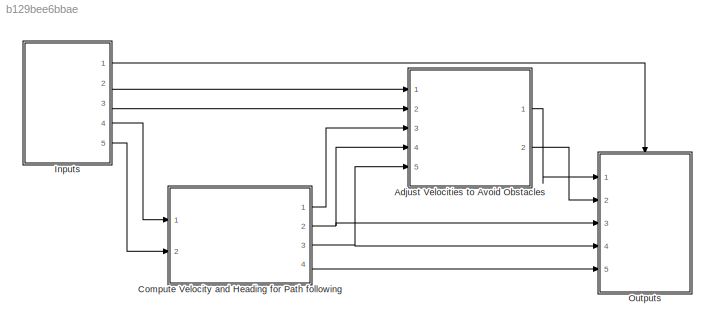
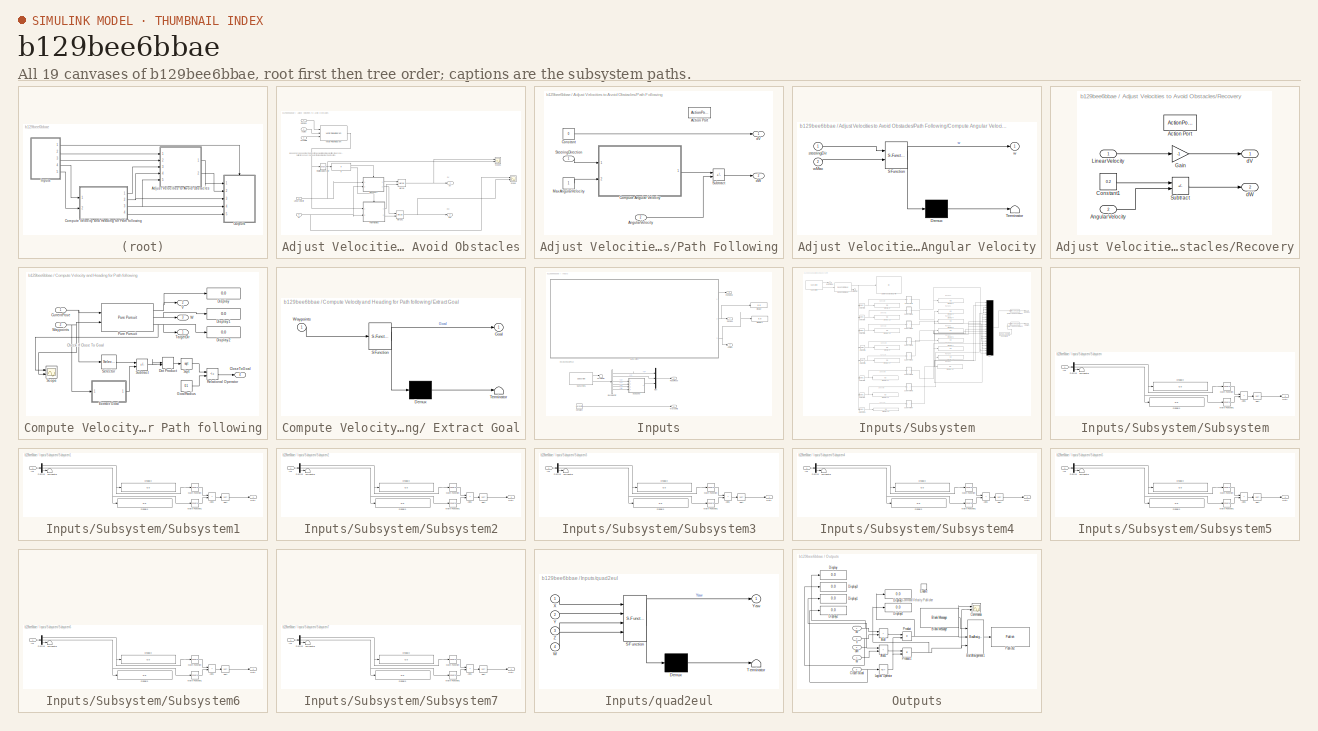
[diagram: thumbnail index - all 19 canvases of the model, root first then tree order]
MODEL slx_b129bee6bbae
KIND model
CONFIG AbsTol = auto
CONFIG EnableMultiTasking = off
CONFIG FixedStep = auto
CONFIG MaxStep = auto
CONFIG MinStep = auto
CONFIG RelTol = 1e-3
CONFIG SampleTimeConstraint = Unconstrained
CONFIG SolverName = FixedStepAuto
CONFIG StartTime = 0.0
CONFIG StopTime = inf
BLOCK [SubSystem] Adjust Velocities to Avoid Obstacles
  Ports = [5, 2]
  RequestExecContextInheritance = off
BLOCK [Inport] Adjust Velocities to Avoid Obstacles/Angles
  Port = 2
BLOCK [If] Adjust Velocities to Avoid Obstacles/If
  IfExpression = u1 == 1
  Ports = [1, 2]
BLOCK [Inport] Adjust Velocities to Avoid Obstacles/LinearVelocity
  Port = 4
BLOCK [Merge] Adjust Velocities to Avoid Obstacles/Merge
  Ports = [2, 1]
BLOCK [Merge] Adjust Velocities to Avoid Obstacles/Merge1
  Ports = [2, 1]
BLOCK [SubSystem] Adjust Velocities to Avoid Obstacles/Path Following
  Ports = [2, 2, 0, 0, 0, 0, 0, 1]
  RequestExecContextInheritance = off
  TreatAsAtomicUnit = on
BLOCK [ActionPort] Adjust Velocities to Avoid Obstacles/Path Following/Action Port
  ActionPortLabel = else
BLOCK [Inport] Adjust Velocities to Avoid Obstacles/Path Following/AngularVelocity
  Port = 2
BLOCK [SubSystem] Adjust Velocities to Avoid Obstacles/Path Following/Compute Angular Velocity
  ErrorFcn = Stateflow.Translate.translate
  PermitHierarchicalResolution = ExplicitOnly
  Ports = [2, 1]
  RequestExecContextInheritance = off
  SFBlockType = MATLAB Function
  TreatAsAtomicUnit = on
BLOCK [Demux] Adjust Velocities to Avoid Obstacles/Path Following/Compute Angular Velocity/ Demux 
  Outputs = 1
  Ports = [1, 1]
BLOCK [S-Function] Adjust Velocities to Avoid Obstacles/Path Following/Compute Angular Velocity/ SFunction 
  EnableBusSupport = on
  FunctionName = sf_sfun
  PortCounts = [2 2]
  Ports = [2, 2]
  SFcnIsStateOwnerBlock = off
  SFunctionDeploymentMode = off
  Tag = Stateflow S-Function 8
BLOCK [Terminator] Adjust Velocities to Avoid Obstacles/Path Following/Compute Angular Velocity/ Terminator 
BLOCK [Inport] Adjust Velocities to Avoid Obstacles/Path Following/Compute Angular Velocity/steeringDir
BLOCK [Outport] Adjust Velocities to Avoid Obstacles/Path Following/Compute Angular Velocity/w
  VectorParamsAs1DForOutWhenUnconnected = off
BLOCK [Inport] Adjust Velocities to Avoid Obstacles/Path Following/Compute Angular Velocity/wMax
  Port = 2
BLOCK [Constant] Adjust Velocities to Avoid Obstacles/Path Following/Constant
  Value = 0
BLOCK [Constant] Adjust Velocities to Avoid Obstacles/Path Following/MaxAngularVelocity
BLOCK [Inport] Adjust Velocities to Avoid Obstacles/Path Following/SteeringDirection
BLOCK [Sum] Adjust Velocities to Avoid Obstacles/Path Following/Subtract
  IconShape = rectangular
  Inputs = +-
  Ports = [2, 1]
BLOCK [Outport] Adjust Velocities to Avoid Obstacles/Path Following/dV
  VectorParamsAs1DForOutWhenUnconnected = off
BLOCK [Outport] Adjust Velocities to Avoid Obstacles/Path Following/dW
  Port = 2
  VectorParamsAs1DForOutWhenUnconnected = off
BLOCK [Inport] Adjust Velocities to Avoid Obstacles/Ranges
BLOCK [SubSystem] Adjust Velocities to Avoid Obstacles/Recovery
  Ports = [2, 2, 0, 0, 0, 0, 0, 1]
  RequestExecContextInheritance = off
  TreatAsAtomicUnit = on
BLOCK [ActionPort] Adjust Velocities to Avoid Obstacles/Recovery/Action Port
  ActionPortLabel = if(u1 == 1)
BLOCK [Inport] Adjust Velocities to Avoid Obstacles/Recovery/AngularVelocity
  Port = 2
BLOCK [Constant] Adjust Velocities to Avoid Obstacles/Recovery/Constant1
  Value = 0.2
BLOCK [Gain] Adjust Velocities to Avoid Obstacles/Recovery/Gain
  Gain = -1
BLOCK [Inport] Adjust Velocities to Avoid Obstacles/Recovery/LinearVelocity
BLOCK [Sum] Adjust Velocities to Avoid Obstacles/Recovery/Subtract
  IconShape = rectangular
  Inputs = +-
  Ports = [2, 1]
BLOCK [Outport] Adjust Velocities to Avoid Obstacles/Recovery/dV
  VectorParamsAs1DForOutWhenUnconnected = off
BLOCK [Outport] Adjust Velocities to Avoid Obstacles/Recovery/dW
  Port = 2
  VectorParamsAs1DForOutWhenUnconnected = off
BLOCK [RelationalOperator] Adjust Velocities to Avoid Obstacles/Relational Operator
  InputSameDT = off
  Operator = isNaN
  OutDataTypeStr = boolean
  Ports = [1, 1]
  RndMeth = Simplest
BLOCK [Scope] Adjust Velocities to Avoid Obstacles/Scope
  Floating = off
  NumInputPorts = 2
  Ports = [2]
  ScopeSpecificationString = Simulink.scopes.TimeScopeBlockCfg('CurrentConfiguration', extmgr.ConfigurationSet(extmgr.Configuration('Core','General UI',true),extmgr.Configuration('Core','Source UI',true),extmgr.Configuration('Sources','WiredSimulink',true,'DataLoggingVariableName','ScopeData1'),extmgr.Configuration('Visuals','Time Domain',true,'SerializedDisplays',{struct('MinYLimReal','-1.15','MaxYLimReal','1.35','YLabelReal...<+1434ch>
BLOCK [Scope] Adjust Velocities to Avoid Obstacles/Scope1
  Floating = off
  NumInputPorts = 2
  Ports = [2]
  ScopeSpecificationString = Simulink.scopes.TimeScopeBlockCfg('CurrentConfiguration', extmgr.ConfigurationSet(extmgr.Configuration('Core','General UI',true),extmgr.Configuration('Core','Source UI',true),extmgr.Configuration('Sources','WiredSimulink',true,'DataLoggingVariableName','ScopeData2'),extmgr.Configuration('Visuals','Time Domain',true,'SerializedDisplays',{struct('MinYLimReal','-0.0375','MaxYLimReal','0.3375','YLabel...<+1455ch>
BLOCK [Inport] Adjust Velocities to Avoid Obstacles/TargetDir
  Port = 3
BLOCK [Reference] Adjust Velocities to Avoid Obstacles/Vector Field Histogram  REF=robotalgslib/Vector Field Histogram
  Ports = [3, 1]
  SourceBlock = robotalgslib/Vector Field Histogram
  SourceProductBaseCode = NV,RO
  SourceType = nav.slalgs.internal.VectorFieldHistogram
BLOCK [Inport] Adjust Velocities to Avoid Obstacles/W
  Port = 5
BLOCK [Outport] Adjust Velocities to Avoid Obstacles/dV
BLOCK [Outport] Adjust Velocities to Avoid Obstacles/dW
  Port = 2
BLOCK [SubSystem] Compute Velocity and Heading for Path following
  Ports = [2, 4]
  RequestExecContextInheritance = off
BLOCK [SubSystem] Compute Velocity and Heading for Path following/ Extract Goal
  ErrorFcn = Stateflow.Translate.translate
  PermitHierarchicalResolution = ExplicitOnly
  Ports = [1, 1]
  RequestExecContextInheritance = off
  SFBlockType = MATLAB Function
  TreatAsAtomicUnit = on
BLOCK [Demux] Compute Velocity and Heading for Path following/ Extract Goal/ Demux 
  Outputs = 1
  Ports = [1, 1]
BLOCK [S-Function] Compute Velocity and Heading for Path following/ Extract Goal/ SFunction 
  EnableBusSupport = on
  FunctionName = sf_sfun
  PortCounts = [1 2]
  Ports = [1, 2]
  SFcnIsStateOwnerBlock = off
  SFunctionDeploymentMode = off
  Tag = Stateflow S-Function 7
BLOCK [Terminator] Compute Velocity and Heading for Path following/ Extract Goal/ Terminator 
BLOCK [Outport] Compute Velocity and Heading for Path following/ Extract Goal/Goal
  VectorParamsAs1DForOutWhenUnconnected = off
BLOCK [Inport] Compute Velocity and Heading for Path following/ Extract Goal/Waypoints
BLOCK [Outport] Compute Velocity and Heading for Path following/CloseToGoal
  Port = 4
  VectorParamsAs1DForOutWhenUnconnected = off
BLOCK [Inport] Compute Velocity and Heading for Path following/CurrentPose
BLOCK [Display] Compute Velocity and Heading for Path following/Display
  Decimation = 1
  Ports = [1]
BLOCK [Display] Compute Velocity and Heading for Path following/Display1
  Decimation = 1
  Ports = [1]
BLOCK [Display] Compute Velocity and Heading for Path following/Display2
  Decimation = 1
  Ports = [1]
BLOCK [DotProduct] Compute Velocity and Heading for Path following/Dot Product
  OutDataTypeStr = Inherit: Inherit via internal rule
BLOCK [Constant] Compute Velocity and Heading for Path following/GoalRadius
  Value = 0.1
BLOCK [Reference] Compute Velocity and Heading for Path following/Pure Pursuit  REF=robotalgslib/Pure Pursuit
  Ports = [2, 3]
  SourceBlock = robotalgslib/Pure Pursuit
  SourceProductBaseCode = NV,RO
  SourceType = nav.slalgs.internal.PurePursuit
BLOCK [RelationalOperator] Compute Velocity and Heading for Path following/Relational Operator
  InputSameDT = off
  Operator = <=
  OutDataTypeStr = boolean
  Ports = [2, 1]
  RndMeth = Simplest
BLOCK [Scope] Compute Velocity and Heading for Path following/Scope
  Floating = off
  NumInputPorts = 2
  Ports = [2]
  ScopeSpecificationString = Simulink.scopes.TimeScopeBlockCfg('CurrentConfiguration', extmgr.ConfigurationSet(extmgr.Configuration('Core','General UI',true),extmgr.Configuration('Core','Source UI',true),extmgr.Configuration('Sources','WiredSimulink',true,'DataLoggingVariableName','ScopeData3'),extmgr.Configuration('Visuals','Time Domain',true,'SerializedDisplays',{struct('MinYLimReal','-1.37819','MaxYLimReal','6.44778','YLab...<+4825ch>
BLOCK [Selector] Compute Velocity and Heading for Path following/Selector
  IndexOptions = Index vector (dialog)
  Indices = [1 2]
  InputPortWidth = 3
  OutputSizes = 1
  Ports = [1, 1]
BLOCK [Sqrt] Compute Velocity and Heading for Path following/Sqrt
BLOCK [Sum] Compute Velocity and Heading for Path following/Subtract
  IconShape = rectangular
  Inputs = +-
  Ports = [2, 1]
BLOCK [Outport] Compute Velocity and Heading for Path following/TargetDir
  VectorParamsAs1DForOutWhenUnconnected = off
BLOCK [Outport] Compute Velocity and Heading for Path following/V
  Port = 2
  VectorParamsAs1DForOutWhenUnconnected = off
BLOCK [Outport] Compute Velocity and Heading for Path following/W
  Port = 3
  VectorParamsAs1DForOutWhenUnconnected = off
BLOCK [Inport] Compute Velocity and Heading for Path following/Waypoints
  Port = 2
BLOCK [SubSystem] Inputs
  Ports = [0, 5]
  RequestExecContextInheritance = off
BLOCK [Outport] Inputs/Angles
  Port = 3
BLOCK [BusSelector] Inputs/Bus Selector
  OutputSignals = Pose.Pose.Position.X,Pose.Pose.Position.Y,Pose.Pose.Orientation.X,Pose.Pose.Orientation.Y,Pose.Pose.Orientation.Z,Pose.Pose.Orientation.W
  Ports = [1, 6]
BLOCK [Constant] Inputs/Constant
  Value = waypoints
BLOCK [Display] Inputs/Display
  Decimation = 1
  Ports = [1]
BLOCK [Display] Inputs/Display1
  Decimation = 1
  Ports = [1]
BLOCK [Outport] Inputs/InNewMsg
BLOCK [Mux] Inputs/Mux
  DisplayOption = bar
  Inputs = 3
  Ports = [3, 1]
BLOCK [Outport] Inputs/Ranges
  Port = 2
BLOCK [Outport] Inputs/RobotPose
  Port = 4
  VectorParamsAs1DForOutWhenUnconnected = off
BLOCK [Reference] Inputs/Subscribe1  REF=robotlib/Subscribe
  Ports = [0, 2]
  SourceBlock = robotlib/Subscribe
  SourceProductBaseCode = RR
  SourceType = ROS Subscribe
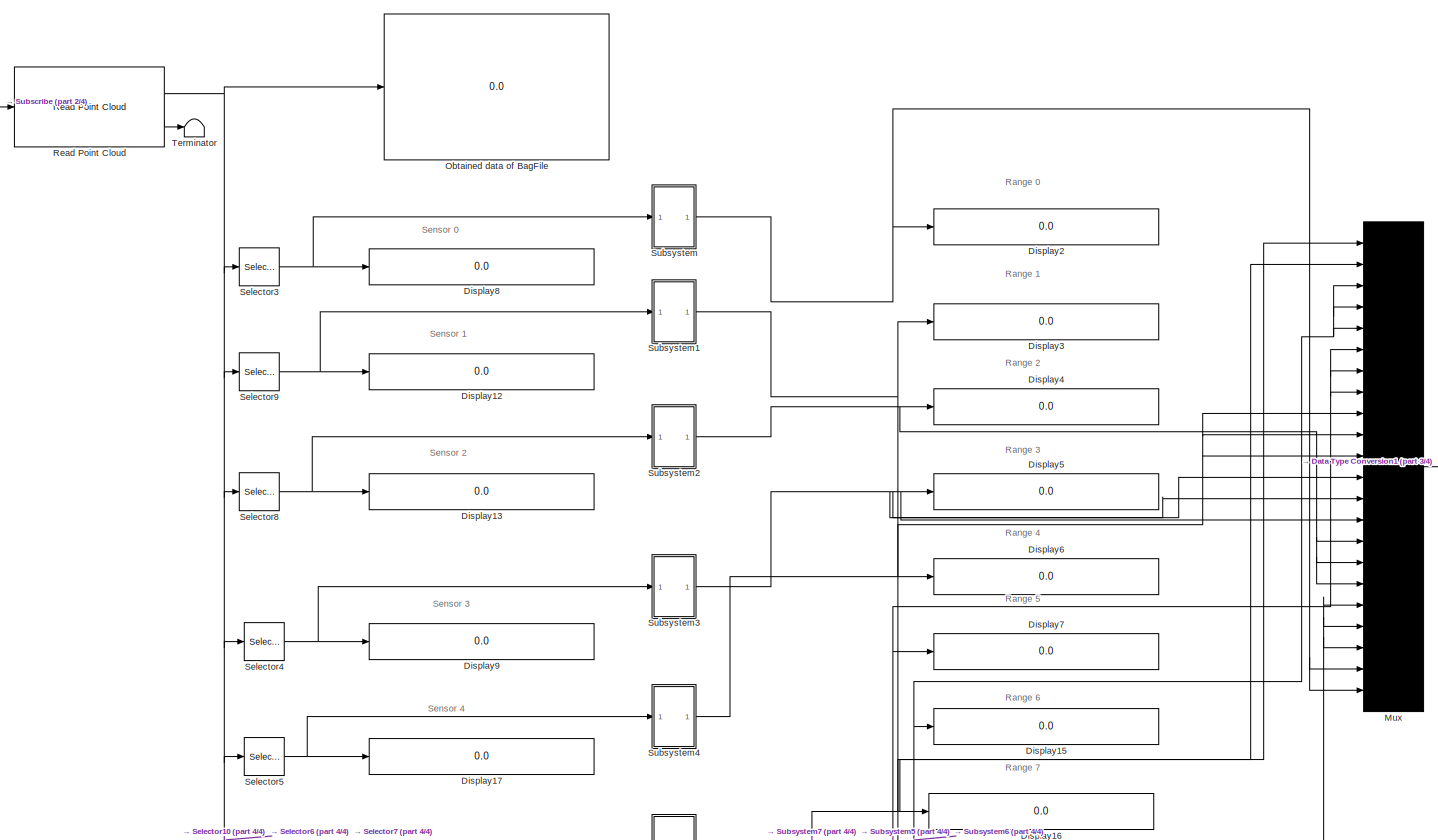
[diagram: Inputs/Subsystem - part 1/4, central region]
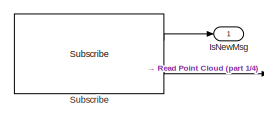
[diagram: Inputs/Subsystem - part 2/4, top left region]
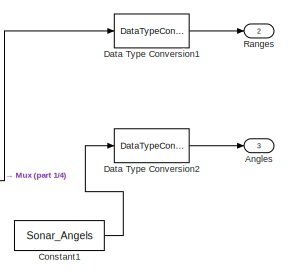
[diagram: Inputs/Subsystem - part 3/4, middle right region]
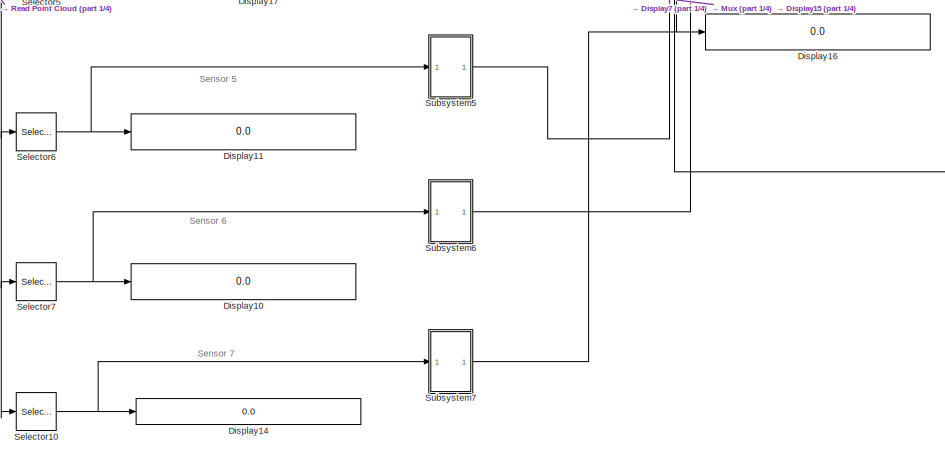
[diagram: Inputs/Subsystem - part 4/4, bottom center region]
BLOCK [SubSystem] Inputs/Subsystem
  Ports = [0, 3]
  RequestExecContextInheritance = off
BLOCK [Outport] Inputs/Subsystem/Angles
  Port = 3
BLOCK [Constant] Inputs/Subsystem/Constant1
  Value = Sonar_Angels
BLOCK [DataTypeConversion] Inputs/Subsystem/Data Type Conversion1
  OutDataTypeStr = double
  RndMeth = Floor
  SaturateOnIntegerOverflow = off
BLOCK [DataTypeConversion] Inputs/Subsystem/Data Type Conversion2
  OutDataTypeStr = double
  RndMeth = Floor
  SaturateOnIntegerOverflow = off
BLOCK [Display] Inputs/Subsystem/Display10
  Decimation = 1
  Ports = [1]
BLOCK [Display] Inputs/Subsystem/Display11
  Decimation = 1
  Ports = [1]
BLOCK [Display] Inputs/Subsystem/Display12
  Decimation = 1
  Ports = [1]
BLOCK [Display] Inputs/Subsystem/Display13
  Decimation = 1
  Ports = [1]
BLOCK [Display] Inputs/Subsystem/Display14
  Decimation = 1
  Ports = [1]
BLOCK [Display] Inputs/Subsystem/Display15
  Decimation = 1
  Ports = [1]
BLOCK [Display] Inputs/Subsystem/Display16
  Decimation = 1
  Ports = [1]
BLOCK [Display] Inputs/Subsystem/Display17
  Decimation = 1
  Ports = [1]
BLOCK [Display] Inputs/Subsystem/Display2
  Decimation = 1
  Ports = [1]
BLOCK [Display] Inputs/Subsystem/Display3
  Decimation = 1
  Ports = [1]
BLOCK [Display] Inputs/Subsystem/Display4
  Decimation = 1
  Ports = [1]
BLOCK [Display] Inputs/Subsystem/Display5
  Decimation = 1
  Ports = [1]
BLOCK [Display] Inputs/Subsystem/Display6
  Decimation = 1
  Ports = [1]
BLOCK [Display] Inputs/Subsystem/Display7
  Decimation = 1
  Ports = [1]
BLOCK [Display] Inputs/Subsystem/Display8
  Decimation = 1
  Ports = [1]
BLOCK [Display] Inputs/Subsystem/Display9
  Decimation = 1
  Ports = [1]
BLOCK [Outport] Inputs/Subsystem/IsNewMsg
BLOCK [Mux] Inputs/Subsystem/Mux
  DisplayOption = bar
  Inputs = 22
  Ports = [22, 1]
BLOCK [Display] Inputs/Subsystem/Obtained data of BagFile
  Decimation = 1
  Ports = [1]
BLOCK [Outport] Inputs/Subsystem/Ranges
  Port = 2
BLOCK [Reference] Inputs/Subsystem/Read Point Cloud  REF=robotlib/Read Point Cloud
  Ports = [1, 2]
  SourceBlock = robotlib/Read Point Cloud
  SourceProductBaseCode = RR
  SourceType = ros.slros.internal.block.ReadPointCloud
BLOCK [Selector] Inputs/Subsystem/Selector10
  IndexOptions = Starting index (dialog),Starting index (dialog)
  Indices = 8,1
  InputPortWidth = 6
  NumberOfDimensions = 2
  OutputSizes = 1,3
  Ports = [1, 1]
BLOCK [Selector] Inputs/Subsystem/Selector3
  IndexOptions = Starting index (dialog),Starting index (dialog)
  Indices = 1,1
  InputPortWidth = 6
  NumberOfDimensions = 2
  OutputSizes = 1,3
  Ports = [1, 1]
BLOCK [Selector] Inputs/Subsystem/Selector4
  IndexOptions = Starting index (dialog),Starting index (dialog)
  Indices = 4,1
  InputPortWidth = 6
  NumberOfDimensions = 2
  OutputSizes = 1,3
  Ports = [1, 1]
BLOCK [Selector] Inputs/Subsystem/Selector5
  IndexOptions = Starting index (dialog),Starting index (dialog)
  Indices = 5,1
  InputPortWidth = 6
  NumberOfDimensions = 2
  OutputSizes = 1,3
  Ports = [1, 1]
BLOCK [Selector] Inputs/Subsystem/Selector6
  IndexOptions = Starting index (dialog),Starting index (dialog)
  Indices = 6,1
  InputPortWidth = 6
  NumberOfDimensions = 2
  OutputSizes = 1,3
  Ports = [1, 1]
BLOCK [Selector] Inputs/Subsystem/Selector7
  IndexOptions = Starting index (dialog),Starting index (dialog)
  Indices = 7,1
  InputPortWidth = 6
  NumberOfDimensions = 2
  OutputSizes = 1,3
  Ports = [1, 1]
BLOCK [Selector] Inputs/Subsystem/Selector8
  IndexOptions = Starting index (dialog),Starting index (dialog)
  Indices = 3,1
  InputPortWidth = 6
  NumberOfDimensions = 2
  OutputSizes = 1,3
  Ports = [1, 1]
BLOCK [Selector] Inputs/Subsystem/Selector9
  IndexOptions = Starting index (dialog),Starting index (dialog)
  Indices = 2,1
  InputPortWidth = 6
  NumberOfDimensions = 2
  OutputSizes = 1,3
  Ports = [1, 1]
BLOCK [Reference] Inputs/Subsystem/Subscribe  REF=robotlib/Subscribe
  Ports = [0, 2]
  SourceBlock = robotlib/Subscribe
  SourceProductBaseCode = RR
  SourceType = ROS Subscribe
BLOCK [SubSystem] Inputs/Subsystem/Subsystem
  Ports = [1, 1]
  RequestExecContextInheritance = off
BLOCK [Sum] Inputs/Subsystem/Subsystem/Add1
  IconShape = rectangular
  Ports = [2, 1]
BLOCK [Demux] Inputs/Subsystem/Subsystem/Demux
  Outputs = 3
  Ports = [1, 3]
BLOCK [Display] Inputs/Subsystem/Subsystem/Display2
  Decimation = 1
  Ports = [1]
BLOCK [Display] Inputs/Subsystem/Subsystem/Display3
  Decimation = 1
  Ports = [1]
BLOCK [Inport] Inputs/Subsystem/Subsystem/In1
BLOCK [Math] Inputs/Subsystem/Subsystem/Math Function
  Operator = square
  Ports = [1, 1]
BLOCK [Math] Inputs/Subsystem/Subsystem/Math Function1
  Operator = square
  Ports = [1, 1]
BLOCK [Outport] Inputs/Subsystem/Subsystem/Out1
BLOCK [Sqrt] Inputs/Subsystem/Subsystem/Sqrt
BLOCK [Terminator] Inputs/Subsystem/Subsystem/Terminator
BLOCK [SubSystem] Inputs/Subsystem/Subsystem1
  Ports = [1, 1]
  RequestExecContextInheritance = off
BLOCK [Sum] Inputs/Subsystem/Subsystem1/Add1
  IconShape = rectangular
  Ports = [2, 1]
BLOCK [Demux] Inputs/Subsystem/Subsystem1/Demux
  Outputs = 3
  Ports = [1, 3]
BLOCK [Display] Inputs/Subsystem/Subsystem1/Display2
  Decimation = 1
  Ports = [1]
BLOCK [Display] Inputs/Subsystem/Subsystem1/Display3
  Decimation = 1
  Ports = [1]
BLOCK [Inport] Inputs/Subsystem/Subsystem1/In1
BLOCK [Math] Inputs/Subsystem/Subsystem1/Math Function
  Operator = square
  Ports = [1, 1]
BLOCK [Math] Inputs/Subsystem/Subsystem1/Math Function1
  Operator = square
  Ports = [1, 1]
BLOCK [Outport] Inputs/Subsystem/Subsystem1/Out1
BLOCK [Sqrt] Inputs/Subsystem/Subsystem1/Sqrt
BLOCK [Terminator] Inputs/Subsystem/Subsystem1/Terminator
BLOCK [SubSystem] Inputs/Subsystem/Subsystem2
  Ports = [1, 1]
  RequestExecContextInheritance = off
BLOCK [Sum] Inputs/Subsystem/Subsystem2/Add1
  IconShape = rectangular
  Ports = [2, 1]
BLOCK [Demux] Inputs/Subsystem/Subsystem2/Demux
  Outputs = 3
  Ports = [1, 3]
BLOCK [Display] Inputs/Subsystem/Subsystem2/Display2
  Decimation = 1
  Ports = [1]
BLOCK [Display] Inputs/Subsystem/Subsystem2/Display3
  Decimation = 1
  Ports = [1]
BLOCK [Inport] Inputs/Subsystem/Subsystem2/In1
BLOCK [Math] Inputs/Subsystem/Subsystem2/Math Function
  Operator = square
  Ports = [1, 1]
BLOCK [Math] Inputs/Subsystem/Subsystem2/Math Function1
  Operator = square
  Ports = [1, 1]
BLOCK [Outport] Inputs/Subsystem/Subsystem2/Out1
BLOCK [Sqrt] Inputs/Subsystem/Subsystem2/Sqrt
BLOCK [Terminator] Inputs/Subsystem/Subsystem2/Terminator
BLOCK [SubSystem] Inputs/Subsystem/Subsystem3
  Ports = [1, 1]
  RequestExecContextInheritance = off
BLOCK [Sum] Inputs/Subsystem/Subsystem3/Add1
  IconShape = rectangular
  Ports = [2, 1]
BLOCK [Demux] Inputs/Subsystem/Subsystem3/Demux
  Outputs = 3
  Ports = [1, 3]
BLOCK [Display] Inputs/Subsystem/Subsystem3/Display2
  Decimation = 1
  Ports = [1]
BLOCK [Display] Inputs/Subsystem/Subsystem3/Display3
  Decimation = 1
  Ports = [1]
BLOCK [Inport] Inputs/Subsystem/Subsystem3/In1
BLOCK [Math] Inputs/Subsystem/Subsystem3/Math Function
  Operator = square
  Ports = [1, 1]
BLOCK [Math] Inputs/Subsystem/Subsystem3/Math Function1
  Operator = square
  Ports = [1, 1]
BLOCK [Outport] Inputs/Subsystem/Subsystem3/Out1
BLOCK [Sqrt] Inputs/Subsystem/Subsystem3/Sqrt
BLOCK [Terminator] Inputs/Subsystem/Subsystem3/Terminator
BLOCK [SubSystem] Inputs/Subsystem/Subsystem4
  Ports = [1, 1]
  RequestExecContextInheritance = off
BLOCK [Sum] Inputs/Subsystem/Subsystem4/Add1
  IconShape = rectangular
  Ports = [2, 1]
BLOCK [Demux] Inputs/Subsystem/Subsystem4/Demux
  Outputs = 3
  Ports = [1, 3]
BLOCK [Display] Inputs/Subsystem/Subsystem4/Display2
  Decimation = 1
  Ports = [1]
BLOCK [Display] Inputs/Subsystem/Subsystem4/Display3
  Decimation = 1
  Ports = [1]
BLOCK [Inport] Inputs/Subsystem/Subsystem4/In1
BLOCK [Math] Inputs/Subsystem/Subsystem4/Math Function
  Operator = square
  Ports = [1, 1]
BLOCK [Math] Inputs/Subsystem/Subsystem4/Math Function1
  Operator = square
  Ports = [1, 1]
BLOCK [Outport] Inputs/Subsystem/Subsystem4/Out1
BLOCK [Sqrt] Inputs/Subsystem/Subsystem4/Sqrt
BLOCK [Terminator] Inputs/Subsystem/Subsystem4/Terminator
BLOCK [SubSystem] Inputs/Subsystem/Subsystem5
  Ports = [1, 1]
  RequestExecContextInheritance = off
BLOCK [Sum] Inputs/Subsystem/Subsystem5/Add1
  IconShape = rectangular
  Ports = [2, 1]
BLOCK [Demux] Inputs/Subsystem/Subsystem5/Demux
  Outputs = 3
  Ports = [1, 3]
BLOCK [Display] Inputs/Subsystem/Subsystem5/Display2
  Decimation = 1
  Ports = [1]
BLOCK [Display] Inputs/Subsystem/Subsystem5/Display3
  Decimation = 1
  Ports = [1]
BLOCK [Inport] Inputs/Subsystem/Subsystem5/In1
BLOCK [Math] Inputs/Subsystem/Subsystem5/Math Function
  Operator = square
  Ports = [1, 1]
BLOCK [Math] Inputs/Subsystem/Subsystem5/Math Function1
  Operator = square
  Ports = [1, 1]
BLOCK [Outport] Inputs/Subsystem/Subsystem5/Out1
BLOCK [Sqrt] Inputs/Subsystem/Subsystem5/Sqrt
BLOCK [Terminator] Inputs/Subsystem/Subsystem5/Terminator
BLOCK [SubSystem] Inputs/Subsystem/Subsystem6
  Ports = [1, 1]
  RequestExecContextInheritance = off
BLOCK [Sum] Inputs/Subsystem/Subsystem6/Add1
  IconShape = rectangular
  Ports = [2, 1]
BLOCK [Demux] Inputs/Subsystem/Subsystem6/Demux
  Outputs = 3
  Ports = [1, 3]
BLOCK [Display] Inputs/Subsystem/Subsystem6/Display2
  Decimation = 1
  Ports = [1]
BLOCK [Display] Inputs/Subsystem/Subsystem6/Display3
  Decimation = 1
  Ports = [1]
BLOCK [Inport] Inputs/Subsystem/Subsystem6/In1
BLOCK [Math] Inputs/Subsystem/Subsystem6/Math Function
  Operator = square
  Ports = [1, 1]
BLOCK [Math] Inputs/Subsystem/Subsystem6/Math Function1
  Operator = square
  Ports = [1, 1]
BLOCK [Outport] Inputs/Subsystem/Subsystem6/Out1
BLOCK [Sqrt] Inputs/Subsystem/Subsystem6/Sqrt
BLOCK [Terminator] Inputs/Subsystem/Subsystem6/Terminator
BLOCK [SubSystem] Inputs/Subsystem/Subsystem7
  Ports = [1, 1]
  RequestExecContextInheritance = off
BLOCK [Sum] Inputs/Subsystem/Subsystem7/Add1
  IconShape = rectangular
  Ports = [2, 1]
BLOCK [Demux] Inputs/Subsystem/Subsystem7/Demux
  Outputs = 3
  Ports = [1, 3]
BLOCK [Display] Inputs/Subsystem/Subsystem7/Display2
  Decimation = 1
  Ports = [1]
BLOCK [Display] Inputs/Subsystem/Subsystem7/Display3
  Decimation = 1
  Ports = [1]
BLOCK [Inport] Inputs/Subsystem/Subsystem7/In1
BLOCK [Math] Inputs/Subsystem/Subsystem7/Math Function
  Operator = square
  Ports = [1, 1]
BLOCK [Math] Inputs/Subsystem/Subsystem7/Math Function1
  Operator = square
  Ports = [1, 1]
BLOCK [Outport] Inputs/Subsystem/Subsystem7/Out1
BLOCK [Sqrt] Inputs/Subsystem/Subsystem7/Sqrt
BLOCK [Terminator] Inputs/Subsystem/Subsystem7/Terminator
BLOCK [Terminator] Inputs/Subsystem/Terminator
BLOCK [Terminator] Inputs/Terminator
BLOCK [Outport] Inputs/Waypoints
  Port = 5
  VectorParamsAs1DForOutWhenUnconnected = off
BLOCK [SubSystem] Inputs/quad2eul
  ErrorFcn = Stateflow.Translate.translate
  PermitHierarchicalResolution = ExplicitOnly
  Ports = [4, 1]
  RequestExecContextInheritance = off
  SFBlockType = MATLAB Function
  TreatAsAtomicUnit = on
BLOCK [Demux] Inputs/quad2eul/ Demux 
  Outputs = 1
  Ports = [1, 1]
BLOCK [S-Function] Inputs/quad2eul/ SFunction 
  EnableBusSupport = on
  FunctionName = sf_sfun
  PortCounts = [4 2]
  Ports = [4, 2]
  SFcnIsStateOwnerBlock = off
  SFunctionDeploymentMode = off
  Tag = Stateflow S-Function 1
BLOCK [Terminator] Inputs/quad2eul/ Terminator 
BLOCK [Inport] Inputs/quad2eul/W
  Port = 4
BLOCK [Inport] Inputs/quad2eul/X
BLOCK [Inport] Inputs/quad2eul/Y
  Port = 2
BLOCK [Outport] Inputs/quad2eul/Yaw
  VectorParamsAs1DForOutWhenUnconnected = off
BLOCK [Inport] Inputs/quad2eul/Z
  Port = 3
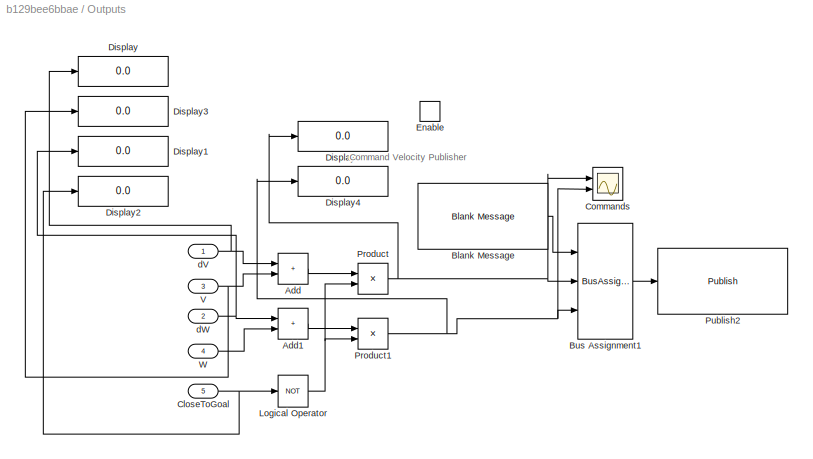
BLOCK [SubSystem] Outputs
  Ports = [5, 0, 1]
  RequestExecContextInheritance = off
BLOCK [Sum] Outputs/Add
  IconShape = rectangular
  Ports = [2, 1]
BLOCK [Sum] Outputs/Add1
  IconShape = rectangular
  Ports = [2, 1]
BLOCK [Reference] Outputs/Blank Message  REF=robotlib/Blank Message
  Ports = [0, 1]
  SourceBlock = robotlib/Blank Message
  SourceProductBaseCode = RR
  SourceType = ROS Blank Message
BLOCK [BusAssignment] Outputs/Bus Assignment1
  AssignedSignals = Linear.X,Angular.Z
  DialogController = Simulink.DDGSource_BusAssignment
  Ports = [3, 1]
BLOCK [Inport] Outputs/CloseToGoal
  Port = 5
BLOCK [Scope] Outputs/Commands
  Floating = off
  NumInputPorts = 2
  Ports = [2]
  ScopeSpecificationString = Simulink.scopes.TimeScopeBlockCfg('CurrentConfiguration', extmgr.ConfigurationSet(extmgr.Configuration('Core','General UI',true),extmgr.Configuration('Core','Source UI',true),extmgr.Configuration('Sources','WiredSimulink',true,'DataLoggingVariableName','ScopeData1'),extmgr.Configuration('Visuals','Time Domain',true,'SerializedDisplays',{struct('MinYLimReal','-1.00000','MaxYLimReal','1.00000','YLab...<+1998ch>
BLOCK [Display] Outputs/Display
  Decimation = 1
  Ports = [1]
BLOCK [Display] Outputs/Display1
  Decimation = 1
  Ports = [1]
BLOCK [Display] Outputs/Display2
  Decimation = 1
  Ports = [1]
BLOCK [Display] Outputs/Display3
  Decimation = 1
  Ports = [1]
BLOCK [Display] Outputs/Display4
  Decimation = 1
  Ports = [1]
BLOCK [Display] Outputs/Display5
  Decimation = 1
  Ports = [1]
BLOCK [EnablePort] Outputs/Enable
  Ports = []
BLOCK [Logic] Outputs/Logical Operator
  AllPortsSameDT = off
  Operator = NOT
  OutDataTypeStr = boolean
  Ports = [1, 1]
BLOCK [Product] Outputs/Product
  Ports = [2, 1]
BLOCK [Product] Outputs/Product1
  Ports = [2, 1]
BLOCK [Reference] Outputs/Publish2  REF=robotlib/Publish
  AttributesFormatString = %<messageType>
  Ports = [1]
  SourceBlock = robotlib/Publish
  SourceProductBaseCode = RR
  SourceType = ROS Publish
BLOCK [Inport] Outputs/V
  Port = 3
BLOCK [Inport] Outputs/W
  Port = 4
BLOCK [Inport] Outputs/dV
BLOCK [Inport] Outputs/dW
  Port = 2
ANNOTATION Adjust Velocities to Avoid Obstacles: Based on proposed steering direction, evaluate feasible velocities (linear and angular). Switch to recovery behavior if no feasible steering direction.
ANNOTATION Adjust Velocities to Avoid Obstacles: dV
ANNOTATION Adjust Velocities to Avoid Obstacles: dW
ANNOTATION Compute Velocity and Heading for Path following: Check If Close To Goal
ANNOTATION Inputs: Receive Robot Pose
ANNOTATION Inputs/Subsystem: Range 0
ANNOTATION Inputs/Subsystem: Range 1
ANNOTATION Inputs/Subsystem: Range 2
ANNOTATION Inputs/Subsystem: Range 3
ANNOTATION Inputs/Subsystem: Range 4
ANNOTATION Inputs/Subsystem: Range 5
ANNOTATION Inputs/Subsystem: Range 6
ANNOTATION Inputs/Subsystem: Range 7
ANNOTATION Inputs/Subsystem: Sensor 0
ANNOTATION Inputs/Subsystem: Sensor 1
ANNOTATION Inputs/Subsystem: Sensor 2
ANNOTATION Inputs/Subsystem: Sensor 3
ANNOTATION Inputs/Subsystem: Sensor 4
ANNOTATION Inputs/Subsystem: Sensor 5
ANNOTATION Inputs/Subsystem: Sensor 6
ANNOTATION Inputs/Subsystem: Sensor 7
ANNOTATION Outputs: Command Velocity Publisher
LINE Adjust Velocities to Avoid Obstacles/Angles:1 -> Adjust Velocities to Avoid Obstacles/Vector Field Histogram:2
LINE Adjust Velocities to Avoid Obstacles/If:1 -> Adjust Velocities to Avoid Obstacles/Recovery:ifaction
LINE Adjust Velocities to Avoid Obstacles/If:2 -> Adjust Velocities to Avoid Obstacles/Path Following:ifaction
NET Adjust Velocities to Avoid Obstacles/LinearVelocity:1 -> Adjust Velocities to Avoid Obstacles/Recovery:1, Adjust Velocities to Avoid Obstacles/Scope1:2
NET Adjust Velocities to Avoid Obstacles/Merge1:1 -> Adjust Velocities to Avoid Obstacles/Scope:2, Adjust Velocities to Avoid Obstacles/dW:1
NET Adjust Velocities to Avoid Obstacles/Merge:1 -> Adjust Velocities to Avoid Obstacles/Scope1:1, Adjust Velocities to Avoid Obstacles/dV:1
LINE Adjust Velocities to Avoid Obstacles/Path Following/AngularVelocity:1 -> Adjust Velocities to Avoid Obstacles/Path Following/Subtract:2
LINE Adjust Velocities to Avoid Obstacles/Path Following/Compute Angular Velocity:1 -> Adjust Velocities to Avoid Obstacles/Path Following/Subtract:1
LINE Adjust Velocities to Avoid Obstacles/Path Following/Constant:1 -> Adjust Velocities to Avoid Obstacles/Path Following/dV:1
LINE Adjust Velocities to Avoid Obstacles/Path Following/MaxAngularVelocity:1 -> Adjust Velocities to Avoid Obstacles/Path Following/Compute Angular Velocity:2
LINE Adjust Velocities to Avoid Obstacles/Path Following/SteeringDirection:1 -> Adjust Velocities to Avoid Obstacles/Path Following/Compute Angular Velocity:1
LINE Adjust Velocities to Avoid Obstacles/Path Following/Subtract:1 -> Adjust Velocities to Avoid Obstacles/Path Following/dW:1
LINE Adjust Velocities to Avoid Obstacles/Path Following:1 -> Adjust Velocities to Avoid Obstacles/Merge:2
LINE Adjust Velocities to Avoid Obstacles/Path Following:2 -> Adjust Velocities to Avoid Obstacles/Merge1:2
LINE Adjust Velocities to Avoid Obstacles/Ranges:1 -> Adjust Velocities to Avoid Obstacles/Vector Field Histogram:1
LINE Adjust Velocities to Avoid Obstacles/Recovery/AngularVelocity:1 -> Adjust Velocities to Avoid Obstacles/Recovery/Subtract:2
LINE Adjust Velocities to Avoid Obstacles/Recovery/Constant1:1 -> Adjust Velocities to Avoid Obstacles/Recovery/Subtract:1
LINE Adjust Velocities to Avoid Obstacles/Recovery/Gain:1 -> Adjust Velocities to Avoid Obstacles/Recovery/dV:1
LINE Adjust Velocities to Avoid Obstacles/Recovery/LinearVelocity:1 -> Adjust Velocities to Avoid Obstacles/Recovery/Gain:1
LINE Adjust Velocities to Avoid Obstacles/Recovery/Subtract:1 -> Adjust Velocities to Avoid Obstacles/Recovery/dW:1
LINE Adjust Velocities to Avoid Obstacles/Recovery:1 -> Adjust Velocities to Avoid Obstacles/Merge:1
LINE Adjust Velocities to Avoid Obstacles/Recovery:2 -> Adjust Velocities to Avoid Obstacles/Merge1:1
LINE Adjust Velocities to Avoid Obstacles/Relational Operator:1 -> Adjust Velocities to Avoid Obstacles/If:1
LINE Adjust Velocities to Avoid Obstacles/TargetDir:1 -> Adjust Velocities to Avoid Obstacles/Vector Field Histogram:3
NET Adjust Velocities to Avoid Obstacles/Vector Field Histogram:1 -> Adjust Velocities to Avoid Obstacles/Path Following:1, Adjust Velocities to Avoid Obstacles/Relational Operator:1
NET Adjust Velocities to Avoid Obstacles/W:1 -> Adjust Velocities to Avoid Obstacles/Path Following:2, Adjust Velocities to Avoid Obstacles/Recovery:2, Adjust Velocities to Avoid Obstacles/Scope:1
LINE Adjust Velocities to Avoid Obstacles:1 -> Outputs:1
LINE Adjust Velocities to Avoid Obstacles:2 -> Outputs:2
LINE Compute Velocity and Heading for Path following/ Extract Goal:1 -> Compute Velocity and Heading for Path following/Subtract:2
NET Compute Velocity and Heading for Path following/CurrentPose:1 -> Compute Velocity and Heading for Path following/Pure Pursuit:1, Compute Velocity and Heading for Path following/Selector:1
LINE Compute Velocity and Heading for Path following/Dot Product:1 -> Compute Velocity and Heading for Path following/Sqrt:1
LINE Compute Velocity and Heading for Path following/GoalRadius:1 -> Compute Velocity and Heading for Path following/Relational Operator:2
NET Compute Velocity and Heading for Path following/Pure Pursuit:1 -> Compute Velocity and Heading for Path following/Display:1, Compute Velocity and Heading for Path following/V:1
NET Compute Velocity and Heading for Path following/Pure Pursuit:2 -> Compute Velocity and Heading for Path following/Display1:1, Compute Velocity and Heading for Path following/W:1
NET Compute Velocity and Heading for Path following/Pure Pursuit:3 -> Compute Velocity and Heading for Path following/Display2:1, Compute Velocity and Heading for Path following/Scope:1, Compute Velocity and Heading for Path following/TargetDir:1
LINE Compute Velocity and Heading for Path following/Relational Operator:1 -> Compute Velocity and Heading for Path following/CloseToGoal:1
LINE Compute Velocity and Heading for Path following/Selector:1 -> Compute Velocity and Heading for Path following/Subtract:1
LINE Compute Velocity and Heading for Path following/Sqrt:1 -> Compute Velocity and Heading for Path following/Relational Operator:1
NET Compute Velocity and Heading for Path following/Subtract:1 -> Compute Velocity and Heading for Path following/Dot Product:1, Compute Velocity and Heading for Path following/Dot Product:2
NET Compute Velocity and Heading for Path following/Waypoints:1 -> Compute Velocity and Heading for Path following/ Extract Goal:1, Compute Velocity and Heading for Path following/Pure Pursuit:2, Compute Velocity and Heading for Path following/Scope:2
LINE Compute Velocity and Heading for Path following:1 -> Adjust Velocities to Avoid Obstacles:3
NET Compute Velocity and Heading for Path following:2 -> Adjust Velocities to Avoid Obstacles:4, Outputs:3
NET Compute Velocity and Heading for Path following:3 -> Adjust Velocities to Avoid Obstacles:5, Outputs:4
LINE Compute Velocity and Heading for Path following:4 -> Outputs:5
LINE Inputs/Bus Selector:1 -> Inputs/Mux:1
LINE Inputs/Bus Selector:2 -> Inputs/Mux:2
LINE Inputs/Bus Selector:3 -> Inputs/quad2eul:1
LINE Inputs/Bus Selector:4 -> Inputs/quad2eul:2
LINE Inputs/Bus Selector:5 -> Inputs/quad2eul:3
LINE Inputs/Bus Selector:6 -> Inputs/quad2eul:4
LINE Inputs/Constant:1 -> Inputs/Waypoints:1
LINE Inputs/Mux:1 -> Inputs/RobotPose:1
LINE Inputs/Subscribe1:1 -> Inputs/Terminator:1
LINE Inputs/Subscribe1:2 -> Inputs/Bus Selector:1
LINE Inputs/Subsystem/Constant1:1 -> Inputs/Subsystem/Data Type Conversion2:1
LINE Inputs/Subsystem/Data Type Conversion1:1 -> Inputs/Subsystem/Ranges:1
LINE Inputs/Subsystem/Data Type Conversion2:1 -> Inputs/Subsystem/Angles:1
LINE Inputs/Subsystem/Mux:1 -> Inputs/Subsystem/Data Type Conversion1:1
NET Inputs/Subsystem/Read Point Cloud:1 -> Inputs/Subsystem/Obtained data of BagFile:1, Inputs/Subsystem/Selector10:1, Inputs/Subsystem/Selector3:1, Inputs/Subsystem/Selector4:1, Inputs/Subsystem/Selector5:1, Inputs/Subsystem/Selector6:1, Inputs/Subsystem/Selector7:1, Inputs/Subsystem/Selector8:1, Inputs/Subsystem/Selector9:1
LINE Inputs/Subsystem/Read Point Cloud:2 -> Inputs/Subsystem/Terminator:1
NET Inputs/Subsystem/Selector10:1 -> Inputs/Subsystem/Display14:1, Inputs/Subsystem/Subsystem7:1
NET Inputs/Subsystem/Selector3:1 -> Inputs/Subsystem/Display8:1, Inputs/Subsystem/Subsystem:1
NET Inputs/Subsystem/Selector4:1 -> Inputs/Subsystem/Display9:1, Inputs/Subsystem/Subsystem3:1
NET Inputs/Subsystem/Selector5:1 -> Inputs/Subsystem/Display17:1, Inputs/Subsystem/Subsystem4:1
NET Inputs/Subsystem/Selector6:1 -> Inputs/Subsystem/Display11:1, Inputs/Subsystem/Subsystem5:1
NET Inputs/Subsystem/Selector7:1 -> Inputs/Subsystem/Display10:1, Inputs/Subsystem/Subsystem6:1
NET Inputs/Subsystem/Selector8:1 -> Inputs/Subsystem/Display13:1, Inputs/Subsystem/Subsystem2:1
NET Inputs/Subsystem/Selector9:1 -> Inputs/Subsystem/Display12:1, Inputs/Subsystem/Subsystem1:1
LINE Inputs/Subsystem/Subscribe:1 -> Inputs/Subsystem/IsNewMsg:1
LINE Inputs/Subsystem/Subscribe:2 -> Inputs/Subsystem/Read Point Cloud:1
LINE Inputs/Subsystem/Subsystem/Add1:1 -> Inputs/Subsystem/Subsystem/Sqrt:1
NET Inputs/Subsystem/Subsystem/Demux:1 -> Inputs/Subsystem/Subsystem/Display2:1, Inputs/Subsystem/Subsystem/Math Function:1
NET Inputs/Subsystem/Subsystem/Demux:2 -> Inputs/Subsystem/Subsystem/Display3:1, Inputs/Subsystem/Subsystem/Math Function1:1
LINE Inputs/Subsystem/Subsystem/Demux:3 -> Inputs/Subsystem/Subsystem/Terminator:1
LINE Inputs/Subsystem/Subsystem/In1:1 -> Inputs/Subsystem/Subsystem/Demux:1
LINE Inputs/Subsystem/Subsystem/Math Function1:1 -> Inputs/Subsystem/Subsystem/Add1:2
LINE Inputs/Subsystem/Subsystem/Math Function:1 -> Inputs/Subsystem/Subsystem/Add1:1
LINE Inputs/Subsystem/Subsystem/Sqrt:1 -> Inputs/Subsystem/Subsystem/Out1:1
LINE Inputs/Subsystem/Subsystem1/Add1:1 -> Inputs/Subsystem/Subsystem1/Sqrt:1
NET Inputs/Subsystem/Subsystem1/Demux:1 -> Inputs/Subsystem/Subsystem1/Display2:1, Inputs/Subsystem/Subsystem1/Math Function:1
NET Inputs/Subsystem/Subsystem1/Demux:2 -> Inputs/Subsystem/Subsystem1/Display3:1, Inputs/Subsystem/Subsystem1/Math Function1:1
LINE Inputs/Subsystem/Subsystem1/Demux:3 -> Inputs/Subsystem/Subsystem1/Terminator:1
LINE Inputs/Subsystem/Subsystem1/In1:1 -> Inputs/Subsystem/Subsystem1/Demux:1
LINE Inputs/Subsystem/Subsystem1/Math Function1:1 -> Inputs/Subsystem/Subsystem1/Add1:2
LINE Inputs/Subsystem/Subsystem1/Math Function:1 -> Inputs/Subsystem/Subsystem1/Add1:1
LINE Inputs/Subsystem/Subsystem1/Sqrt:1 -> Inputs/Subsystem/Subsystem1/Out1:1
NET Inputs/Subsystem/Subsystem1:1 -> Inputs/Subsystem/Display3:1, Inputs/Subsystem/Mux:18, Inputs/Subsystem/Mux:19, Inputs/Subsystem/Mux:20
LINE Inputs/Subsystem/Subsystem2/Add1:1 -> Inputs/Subsystem/Subsystem2/Sqrt:1
NET Inputs/Subsystem/Subsystem2/Demux:1 -> Inputs/Subsystem/Subsystem2/Display2:1, Inputs/Subsystem/Subsystem2/Math Function:1
NET Inputs/Subsystem/Subsystem2/Demux:2 -> Inputs/Subsystem/Subsystem2/Display3:1, Inputs/Subsystem/Subsystem2/Math Function1:1
LINE Inputs/Subsystem/Subsystem2/Demux:3 -> Inputs/Subsystem/Subsystem2/Terminator:1
LINE Inputs/Subsystem/Subsystem2/In1:1 -> Inputs/Subsystem/Subsystem2/Demux:1
LINE Inputs/Subsystem/Subsystem2/Math Function1:1 -> Inputs/Subsystem/Subsystem2/Add1:2
LINE Inputs/Subsystem/Subsystem2/Math Function:1 -> Inputs/Subsystem/Subsystem2/Add1:1
LINE Inputs/Subsystem/Subsystem2/Sqrt:1 -> Inputs/Subsystem/Subsystem2/Out1:1
NET Inputs/Subsystem/Subsystem2:1 -> Inputs/Subsystem/Display4:1, Inputs/Subsystem/Mux:15, Inputs/Subsystem/Mux:16, Inputs/Subsystem/Mux:17
LINE Inputs/Subsystem/Subsystem3/Add1:1 -> Inputs/Subsystem/Subsystem3/Sqrt:1
NET Inputs/Subsystem/Subsystem3/Demux:1 -> Inputs/Subsystem/Subsystem3/Display2:1, Inputs/Subsystem/Subsystem3/Math Function:1
NET Inputs/Subsystem/Subsystem3/Demux:2 -> Inputs/Subsystem/Subsystem3/Display3:1, Inputs/Subsystem/Subsystem3/Math Function1:1
LINE Inputs/Subsystem/Subsystem3/Demux:3 -> Inputs/Subsystem/Subsystem3/Terminator:1
LINE Inputs/Subsystem/Subsystem3/In1:1 -> Inputs/Subsystem/Subsystem3/Demux:1
LINE Inputs/Subsystem/Subsystem3/Math Function1:1 -> Inputs/Subsystem/Subsystem3/Add1:2
LINE Inputs/Subsystem/Subsystem3/Math Function:1 -> Inputs/Subsystem/Subsystem3/Add1:1
LINE Inputs/Subsystem/Subsystem3/Sqrt:1 -> Inputs/Subsystem/Subsystem3/Out1:1
NET Inputs/Subsystem/Subsystem3:1 -> Inputs/Subsystem/Display5:1, Inputs/Subsystem/Mux:12, Inputs/Subsystem/Mux:13, Inputs/Subsystem/Mux:14
LINE Inputs/Subsystem/Subsystem4/Add1:1 -> Inputs/Subsystem/Subsystem4/Sqrt:1
NET Inputs/Subsystem/Subsystem4/Demux:1 -> Inputs/Subsystem/Subsystem4/Display2:1, Inputs/Subsystem/Subsystem4/Math Function:1
NET Inputs/Subsystem/Subsystem4/Demux:2 -> Inputs/Subsystem/Subsystem4/Display3:1, Inputs/Subsystem/Subsystem4/Math Function1:1
LINE Inputs/Subsystem/Subsystem4/Demux:3 -> Inputs/Subsystem/Subsystem4/Terminator:1
LINE Inputs/Subsystem/Subsystem4/In1:1 -> Inputs/Subsystem/Subsystem4/Demux:1
LINE Inputs/Subsystem/Subsystem4/Math Function1:1 -> Inputs/Subsystem/Subsystem4/Add1:2
LINE Inputs/Subsystem/Subsystem4/Math Function:1 -> Inputs/Subsystem/Subsystem4/Add1:1
LINE Inputs/Subsystem/Subsystem4/Sqrt:1 -> Inputs/Subsystem/Subsystem4/Out1:1
NET Inputs/Subsystem/Subsystem4:1 -> Inputs/Subsystem/Display6:1, Inputs/Subsystem/Mux:10, Inputs/Subsystem/Mux:11, Inputs/Subsystem/Mux:9
LINE Inputs/Subsystem/Subsystem5/Add1:1 -> Inputs/Subsystem/Subsystem5/Sqrt:1
NET Inputs/Subsystem/Subsystem5/Demux:1 -> Inputs/Subsystem/Subsystem5/Display2:1, Inputs/Subsystem/Subsystem5/Math Function:1
NET Inputs/Subsystem/Subsystem5/Demux:2 -> Inputs/Subsystem/Subsystem5/Display3:1, Inputs/Subsystem/Subsystem5/Math Function1:1
LINE Inputs/Subsystem/Subsystem5/Demux:3 -> Inputs/Subsystem/Subsystem5/Terminator:1
LINE Inputs/Subsystem/Subsystem5/In1:1 -> Inputs/Subsystem/Subsystem5/Demux:1
LINE Inputs/Subsystem/Subsystem5/Math Function1:1 -> Inputs/Subsystem/Subsystem5/Add1:2
LINE Inputs/Subsystem/Subsystem5/Math Function:1 -> Inputs/Subsystem/Subsystem5/Add1:1
LINE Inputs/Subsystem/Subsystem5/Sqrt:1 -> Inputs/Subsystem/Subsystem5/Out1:1
NET Inputs/Subsystem/Subsystem5:1 -> Inputs/Subsystem/Display7:1, Inputs/Subsystem/Mux:6, Inputs/Subsystem/Mux:7, Inputs/Subsystem/Mux:8
LINE Inputs/Subsystem/Subsystem6/Add1:1 -> Inputs/Subsystem/Subsystem6/Sqrt:1
NET Inputs/Subsystem/Subsystem6/Demux:1 -> Inputs/Subsystem/Subsystem6/Display2:1, Inputs/Subsystem/Subsystem6/Math Function:1
NET Inputs/Subsystem/Subsystem6/Demux:2 -> Inputs/Subsystem/Subsystem6/Display3:1, Inputs/Subsystem/Subsystem6/Math Function1:1
LINE Inputs/Subsystem/Subsystem6/Demux:3 -> Inputs/Subsystem/Subsystem6/Terminator:1
LINE Inputs/Subsystem/Subsystem6/In1:1 -> Inputs/Subsystem/Subsystem6/Demux:1
LINE Inputs/Subsystem/Subsystem6/Math Function1:1 -> Inputs/Subsystem/Subsystem6/Add1:2
LINE Inputs/Subsystem/Subsystem6/Math Function:1 -> Inputs/Subsystem/Subsystem6/Add1:1
LINE Inputs/Subsystem/Subsystem6/Sqrt:1 -> Inputs/Subsystem/Subsystem6/Out1:1
NET Inputs/Subsystem/Subsystem6:1 -> Inputs/Subsystem/Display15:1, Inputs/Subsystem/Mux:3, Inputs/Subsystem/Mux:4, Inputs/Subsystem/Mux:5
LINE Inputs/Subsystem/Subsystem7/Add1:1 -> Inputs/Subsystem/Subsystem7/Sqrt:1
NET Inputs/Subsystem/Subsystem7/Demux:1 -> Inputs/Subsystem/Subsystem7/Display2:1, Inputs/Subsystem/Subsystem7/Math Function:1
NET Inputs/Subsystem/Subsystem7/Demux:2 -> Inputs/Subsystem/Subsystem7/Display3:1, Inputs/Subsystem/Subsystem7/Math Function1:1
LINE Inputs/Subsystem/Subsystem7/Demux:3 -> Inputs/Subsystem/Subsystem7/Terminator:1
LINE Inputs/Subsystem/Subsystem7/In1:1 -> Inputs/Subsystem/Subsystem7/Demux:1
LINE Inputs/Subsystem/Subsystem7/Math Function1:1 -> Inputs/Subsystem/Subsystem7/Add1:2
LINE Inputs/Subsystem/Subsystem7/Math Function:1 -> Inputs/Subsystem/Subsystem7/Add1:1
LINE Inputs/Subsystem/Subsystem7/Sqrt:1 -> Inputs/Subsystem/Subsystem7/Out1:1
NET Inputs/Subsystem/Subsystem7:1 -> Inputs/Subsystem/Display16:1, Inputs/Subsystem/Mux:1, Inputs/Subsystem/Mux:2
NET Inputs/Subsystem/Subsystem:1 -> Inputs/Subsystem/Display2:1, Inputs/Subsystem/Mux:21, Inputs/Subsystem/Mux:22
LINE Inputs/Subsystem:1 -> Inputs/InNewMsg:1
NET Inputs/Subsystem:2 -> Inputs/Display:1, Inputs/Ranges:1
NET Inputs/Subsystem:3 -> Inputs/Angles:1, Inputs/Display1:1
LINE Inputs/quad2eul:1 -> Inputs/Mux:3
LINE Inputs:1 -> Outputs:enable
LINE Inputs:2 -> Adjust Velocities to Avoid Obstacles:1
LINE Inputs:3 -> Adjust Velocities to Avoid Obstacles:2
LINE Inputs:4 -> Compute Velocity and Heading for Path following:1
LINE Inputs:5 -> Compute Velocity and Heading for Path following:2
LINE Outputs/Add1:1 -> Outputs/Product1:1
LINE Outputs/Add:1 -> Outputs/Product:1
LINE Outputs/Blank Message:1 -> Outputs/Bus Assignment1:1
LINE Outputs/Bus Assignment1:1 -> Outputs/Publish2:1
NET Outputs/CloseToGoal:1 -> Outputs/Display2:1, Outputs/Logical Operator:1
NET Outputs/Logical Operator:1 -> Outputs/Product1:2, Outputs/Product:2
NET Outputs/Product1:1 -> Outputs/Bus Assignment1:3, Outputs/Commands:2, Outputs/Display4:1
NET Outputs/Product:1 -> Outputs/Bus Assignment1:2, Outputs/Commands:1, Outputs/Display5:1
NET Outputs/V:1 -> Outputs/Add:2, Outputs/Display3:1
LINE Outputs/W:1 -> Outputs/Add1:2
NET Outputs/dV:1 -> Outputs/Add:1, Outputs/Display:1
NET Outputs/dW:1 -> Outputs/Add1:1, Outputs/Display1:1
note: NET lines group one-source signal fan-out (src -> all destinations, sorted); 1:1 wires keep LINE
CHART Inputs/quad2eul states=1 transitions=1
  STATE_LABEL 'eML_blk_kernel()'
  STATE_LABEL 'SCRIPT:\nfunction Yaw = quat2eulBlk(X, Y, Z, W)\n%#codegen\n\neularAngles = quat2eul([W, X, Y, Z]);\nYaw = eularAngles(1);'
CHART Compute Velocity and Heading for Path following/ Extract Goal states=1 transitions=1
  STATE_LABEL 'eML_blk_kernel()'
  STATE_LABEL 'SCRIPT:\nfunction Goal = extractGoal(Waypoints)\n%#codegen\nb = isnan(Waypoints);\n[rows,~] = find(b);\nridx = setdiff(1:size(Waypoints,1), sort(rows));\nGoal = [Waypoints(ridx(end), 1) Waypoints(ridx(end), 2)];'
CHART Adjust Velocities to Avoid Obstacles/Path Following/Compute Angular Velocity states=1 transitions=1
  STATE_LABEL 'eML_blk_kernel()'
  STATE_LABEL "SCRIPT:\nfunction w = exampleHelperComputeAngularVelocity(steeringDir, wMax)\n%EXAMPLEHELPERCOMPUTEANGULARVELOCITY Compute angular velocity\n%   W = exampleHelperComputeAngularVelocity(STEERINGDIR)\n%   returns the angular velocity W for a differential drive robot in radians\n%   per second for a given steering direction STEERINGDIR in the robot's\n%   coordinate frame in radians.\n%\n%   W = exampleHelpe...<+1444ch>"
CHART  states=0 transitions=0
CHART  states=0 transitions=0
CHART  states=0 transitions=0
